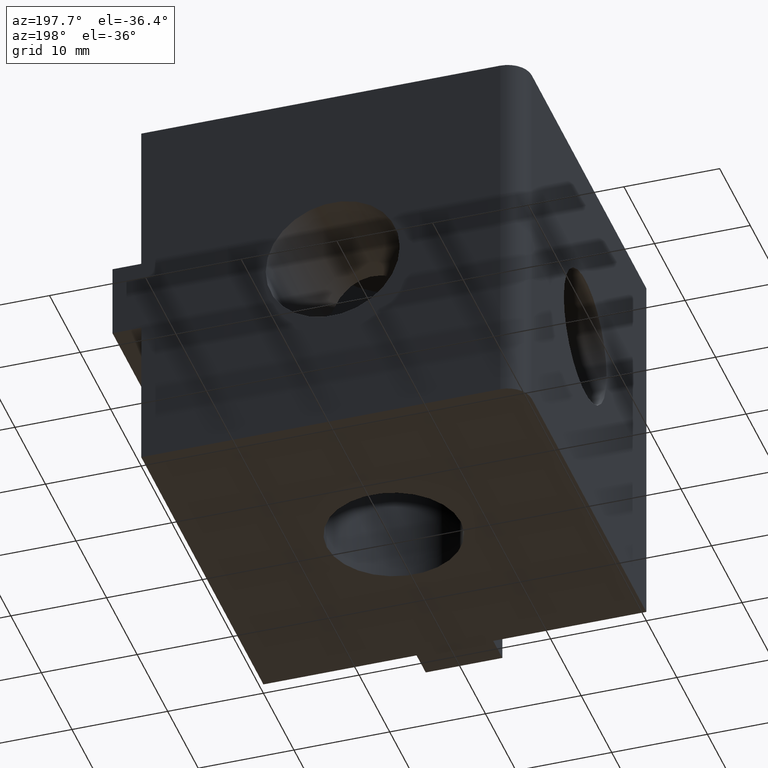
[diagram: clean part render]
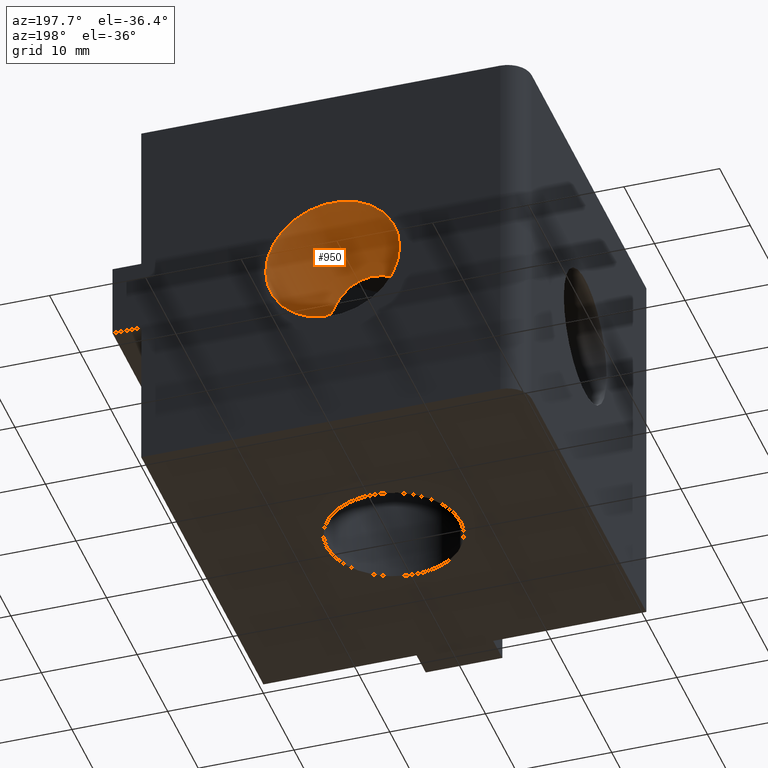
[diagram: same view with one face highlighted and labeled with its STEP entity id]
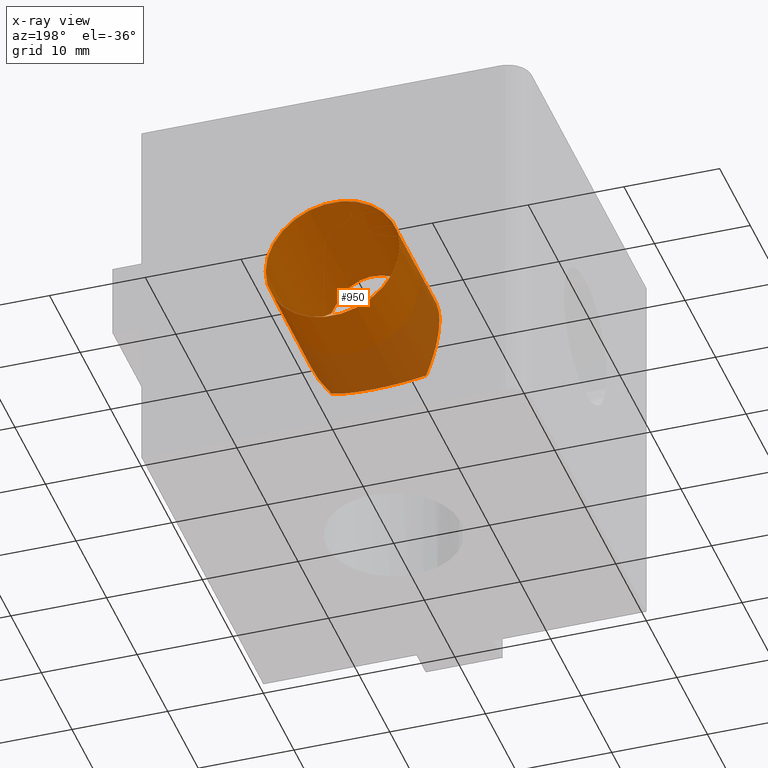
[diagram: x-ray of the same camera — body ghosted, the highlighted face saturated]
A machine part, auxiliary view. The second image highlights one B-rep face of the part: STEP entity #950.
The next image is the same camera in x-ray: the body ghosted, the highlighted face saturated — about 28% of this face is hidden behind the body in this view.
In plain terms, the highlighted cylindrical surface (bore or boss wall) has radius 7 mm, axis along (0, 1, 0).
Its self-contained STEP definition (entity closure, byte-faithful):
#428=CARTESIAN_POINT('',(6.999996535972450,19.999991119839819,19.999995559920080));
#429=VERTEX_POINT('',#428);
#430=CARTESIAN_POINT('',(-6.999996535972457,19.999991119839819,19.999995559920080));
#431=VERTEX_POINT('',#430);
#432=CARTESIAN_POINT('',(0.0,19.999991119839819,19.999995559920080));
#433=DIRECTION('',(0.0,1.0,0.0));
#434=DIRECTION('',(-1.0,0.0,0.0));
#435=AXIS2_PLACEMENT_3D('',#432,#433,#434);
#436=CIRCLE('',#435,6.999996535972450);
#437=EDGE_CURVE('',#429,#431,#436,.T.);
#439=CARTESIAN_POINT('',(0.0,19.999991119839819,19.999995559920080));
#440=DIRECTION('',(0.0,1.0,0.0));
#441=DIRECTION('',(-1.0,0.0,0.0));
#442=AXIS2_PLACEMENT_3D('',#439,#440,#441);
#443=CIRCLE('',#442,6.999996535972450);
#444=EDGE_CURVE('',#431,#429,#443,.T.);
#857=CARTESIAN_POINT('',(0.0,19.999991119839819,19.999995559920080));
#858=DIRECTION('',(0.0,1.0,0.0));
#859=DIRECTION('',(-1.0,0.0,0.0));
#860=AXIS2_PLACEMENT_3D('',#857,#858,#859);
#861=CYLINDRICAL_SURFACE('',#860,6.999996535972450);
#862=ORIENTED_EDGE('',*,*,#444,.T.);
#863=ORIENTED_EDGE('',*,*,#437,.T.);
#864=CARTESIAN_POINT('',(-6.999996535972457,6.999996535972429,19.999995559920080));
#865=VERTEX_POINT('',#864);
#866=CARTESIAN_POINT('',(-6.999996535972457,19.999991119839819,19.999995559920080));
#867=DIRECTION('',(0.0,-1.0,0.0));
#868=VECTOR('',#867,12.999994583867400);
#869=LINE('',#866,#868);
#870=EDGE_CURVE('',#431,#865,#869,.T.);
#871=ORIENTED_EDGE('',*,*,#870,.T.);
#872=CARTESIAN_POINT('',(-4.949745018868441,4.949745018868498,15.050250541051591));
#873=VERTEX_POINT('',#872);
#874=CARTESIAN_POINT('',(-6.999996535972457,6.999996535972429,19.999995559920080));
#875=CARTESIAN_POINT('',(-6.999996535972457,6.999996535972429,19.641945558314998));
#876=CARTESIAN_POINT('',(-6.936435115194200,6.936435113856135,18.821526807923640));
#877=CARTESIAN_POINT('',(-6.619023656289443,6.619023662504759,17.594462160173329));
#878=CARTESIAN_POINT('',(-6.053792348707674,6.053792324754710,16.407702951168996));
#879=CARTESIAN_POINT('',(-5.459223345664589,5.459223414412570,15.588748705800601));
#880=CARTESIAN_POINT('',(-5.069594545570993,5.069594484059007,15.170087643688037));
#881=CARTESIAN_POINT('',(-4.949748961629254,4.949748884839029,15.050242732275969));
#882=B_SPLINE_CURVE_WITH_KNOTS('',3,(#874,#875,#876,#877,#878,#879,#880,#881),.UNSPECIFIED.,.F.,.U.,(4,1,1,1,1,4),(0.0,1.076210521592856,2.457966925929246,3.888967927551320,5.341226789376540,5.963964917351099),.UNSPECIFIED.);
#883=EDGE_CURVE('',#865,#873,#882,.T.);
#884=ORIENTED_EDGE('',*,*,#883,.T.);
#885=CARTESIAN_POINT('',(4.949745018868441,4.949745018868498,15.050250541051598));
#886=VERTEX_POINT('',#885);
#887=CARTESIAN_POINT('',(-4.949730092743039,4.949774877240031,15.050235615016197));
#888=CARTESIAN_POINT('',(-4.782834394439988,5.116670575543083,14.883341929813680));
#889=CARTESIAN_POINT('',(-4.207725773686207,5.637324136719059,14.362653220301976));
#890=CARTESIAN_POINT('',(-3.183929196249494,6.294918922692148,13.705080821994667));
#891=CARTESIAN_POINT('',(-1.850267294133005,6.789171235919696,13.210823463586960));
#892=CARTESIAN_POINT('',(-0.565619246575523,7.018810901817659,12.981184856219107));
#893=CARTESIAN_POINT('',(0.789043796490205,7.001868984838609,12.998126765164116));
#894=CARTESIAN_POINT('',(2.175279788096617,6.702881665312106,13.297112897836900));
#895=CARTESIAN_POINT('',(3.436798498167093,6.148956617965155,13.851043125256636));
#896=CARTESIAN_POINT('',(4.341759483390348,5.519033358944824,14.480950095028252));
#897=CARTESIAN_POINT('',(4.803221999990427,5.096279563246810,14.903728886087126));
#898=CARTESIAN_POINT('',(4.949733499625978,4.949768063611259,15.050239021862753));
#899=B_SPLINE_CURVE_WITH_KNOTS('',3,(#887,#888,#889,#890,#891,#892,#893,#894,#895,#896,#897,#898),.UNSPECIFIED.,.F.,.U.,(4,1,1,1,1,1,1,1,1,4),(0.0,0.867571419255015,2.799573466694702,4.112375089853361,5.355245591076848,6.745713738884417,8.136366382958771,9.664443375445583,11.166276697924756,11.927804385643858),.UNSPECIFIED.);
#900=EDGE_CURVE('',#873,#886,#899,.T.);
#901=ORIENTED_EDGE('',*,*,#900,.T.);
#902=CARTESIAN_POINT('',(4.949745018868498,4.949745018868413,24.949740578788479));
#903=VERTEX_POINT('',#902);
#904=CARTESIAN_POINT('',(4.949747060869282,4.949747267911774,15.050246250100678));
#905=CARTESIAN_POINT('',(5.043135335934500,5.043135486777881,15.143636524089942));
#906=CARTESIAN_POINT('',(5.415025429121436,5.415025206277744,15.537005019208589));
#907=CARTESIAN_POINT('',(6.011567552858679,6.011567637371229,16.333141809666085));
#908=CARTESIAN_POINT('',(6.584082416481294,6.584082397923424,17.504833871680319));
#909=CARTESIAN_POINT('',(6.918745411370935,6.918745414523499,18.730799871143525));
#910=CARTESIAN_POINT('',(7.042427979277363,7.042427981904837,20.031457660180859));
#911=CARTESIAN_POINT('',(6.908250363256428,6.908250343401420,21.416763857622620));
#912=CARTESIAN_POINT('',(6.474393263050217,6.474393337542978,22.777353138622285));
#913=CARTESIAN_POINT('',(5.809817506087271,5.809817227119978,23.980036750512067));
#914=CARTESIAN_POINT('',(5.258710494326277,5.258711165661023,24.640767864731384));
#915=CARTESIAN_POINT('',(4.949744272688353,4.949744364543989,24.949739178305737));
#916=B_SPLINE_CURVE_WITH_KNOTS('',3,(#904,#905,#906,#907,#908,#909,#910,#911,#912,#913,#914,#915),.UNSPECIFIED.,.F.,.U.,(4,1,1,1,1,1,1,1,1,4),(3.084165526299362,3.569437231929952,5.053839934288162,6.548880215268137,7.812947238586713,8.969527755784132,10.458935069726339,11.961000255829884,13.406845200136393,15.012043905307412),.UNSPECIFIED.);
#917=EDGE_CURVE('',#886,#903,#916,.T.);
#918=ORIENTED_EDGE('',*,*,#917,.T.);
#919=CARTESIAN_POINT('',(-4.949745018868526,4.949745018868413,24.949740578788489));
#920=VERTEX_POINT('',#919);
#921=CARTESIAN_POINT('',(4.949743827714968,4.949747400718195,24.949741769941443));
#922=CARTESIAN_POINT('',(4.803228396594477,5.096262831838686,25.096257060026581));
#923=CARTESIAN_POINT('',(4.341778899760527,5.519027055713821,25.519023865588331));
#924=CARTESIAN_POINT('',(3.436835559238801,6.148929098689052,26.148924231885140));
#925=CARTESIAN_POINT('',(2.175354930991261,6.702856029286039,26.702851672731128));
#926=CARTESIAN_POINT('',(0.789138191125403,7.001858652914393,27.001854258431671));
#927=CARTESIAN_POINT('',(-0.565530233453643,7.018818420605783,27.018813726853441));
#928=CARTESIAN_POINT('',(-1.850183213509894,6.789194079462732,26.789190514643366));
#929=CARTESIAN_POINT('',(-3.183865288418986,6.294953089330647,26.294944458387743));
#930=CARTESIAN_POINT('',(-4.207693334526084,5.637351299200617,25.637365062288382));
#931=CARTESIAN_POINT('',(-4.782823828161924,5.116681141821147,25.116659756177086));
#932=CARTESIAN_POINT('',(-4.949730092743096,4.949774877239946,24.949755504823887));
#933=B_SPLINE_CURVE_WITH_KNOTS('',3,(#921,#922,#923,#924,#925,#926,#927,#928,#929,#930,#931,#932),.UNSPECIFIED.,.F.,.U.,(4,1,1,1,1,1,1,1,1,4),(0.0,0.761550400483987,2.263334948567999,3.791357946103679,5.182021167684534,6.572496885565553,7.815366350833178,9.128159456725621,11.060201814057940,11.927828207911636),.UNSPECIFIED.);
#934=EDGE_CURVE('',#903,#920,#933,.T.);
#935=ORIENTED_EDGE('',*,*,#934,.T.);
#936=CARTESIAN_POINT('',(-4.949748961629322,4.949748884838956,24.949748387564142));
#937=CARTESIAN_POINT('',(-5.069594545571048,5.069594484058912,24.829903476152090));
#938=CARTESIAN_POINT('',(-5.459223345664665,5.459223414412469,24.411242414039535));
#939=CARTESIAN_POINT('',(-6.053792348707646,6.053792324754625,23.592288168671164));
#940=CARTESIAN_POINT('',(-6.619023656289471,6.619023662504759,22.405528959666832));
#941=CARTESIAN_POINT('',(-6.936435115194172,6.936435113856078,21.178464311916514));
#942=CARTESIAN_POINT('',(-6.999996535972457,6.999996535972429,20.358045561525159));
#943=CARTESIAN_POINT('',(-6.999996535972457,6.999996535972429,19.999995559920080));
#944=B_SPLINE_CURVE_WITH_KNOTS('',3,(#936,#937,#938,#939,#940,#941,#942,#943),.UNSPECIFIED.,.F.,.U.,(4,1,1,1,1,4),(3.084190755651510,3.706928883625954,5.159187745451233,6.590188747073309,7.971945151409697,9.048155673002547),.UNSPECIFIED.);
#945=EDGE_CURVE('',#920,#865,#944,.T.);
#946=ORIENTED_EDGE('',*,*,#945,.T.);
#947=ORIENTED_EDGE('',*,*,#870,.F.);
#948=EDGE_LOOP('',(#862,#863,#871,#884,#901,#918,#935,#946,#947));
#949=FACE_OUTER_BOUND('',#948,.T.);
#950=ADVANCED_FACE('',(#949),#861,.F.);